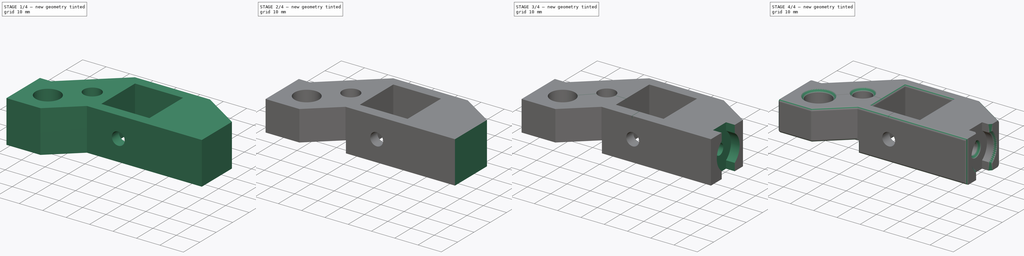
[diagram: build sequence overview — one tinted view per stage of 4, left to right]
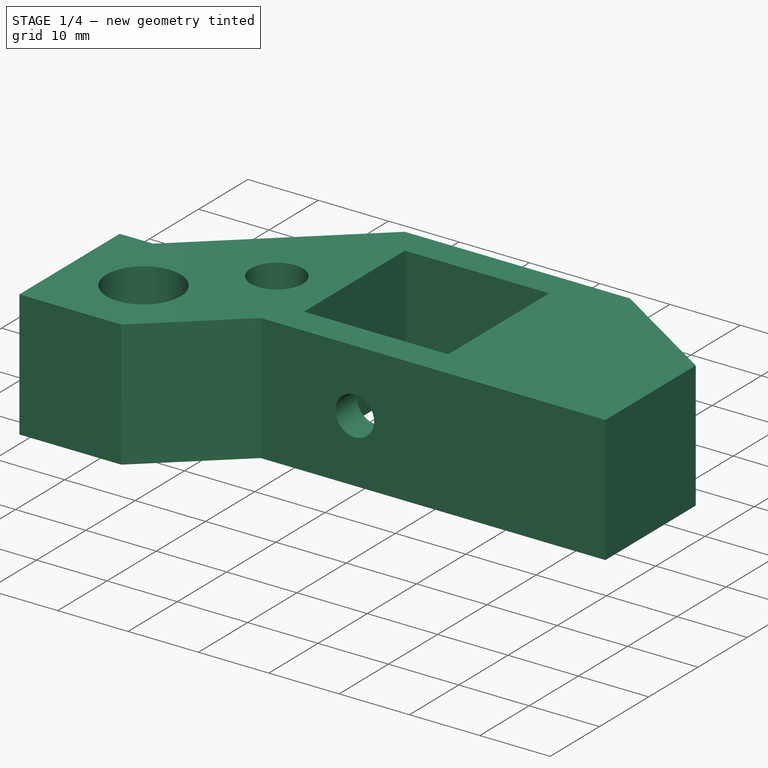
[diagram: stage 1 of 4 — iso view after this stage's code; geometry added in this stage tinted green]
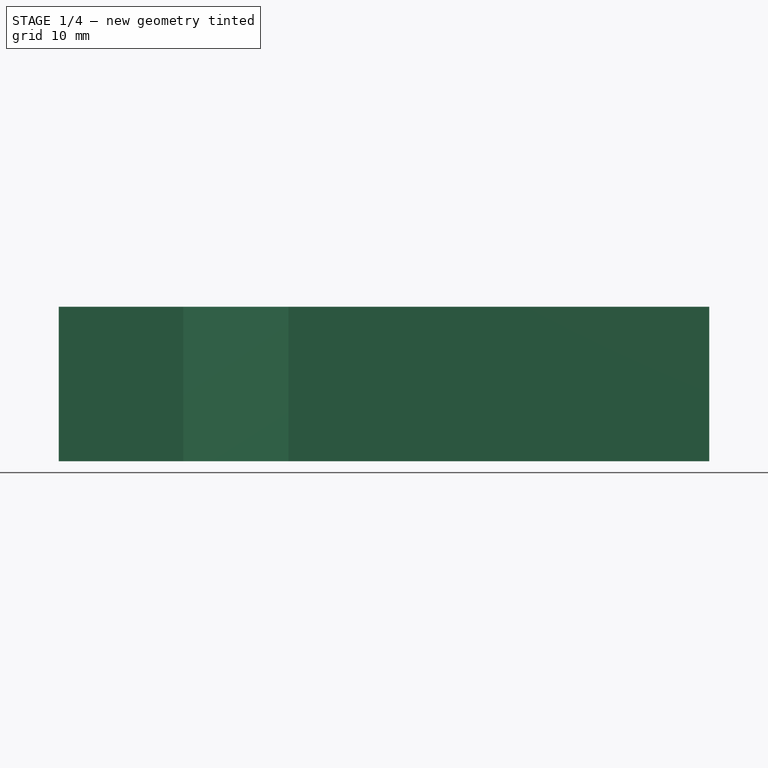
[diagram: stage 1 of 4 — front view after this stage's code; geometry added in this stage tinted green]
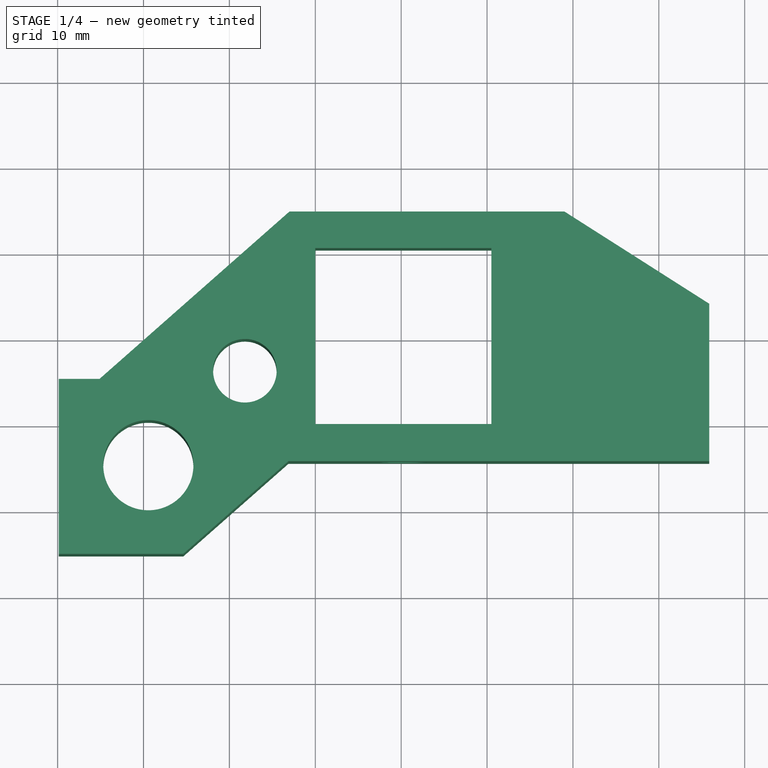
[diagram: stage 1 of 4 — top view after this stage's code; geometry added in this stage tinted green]
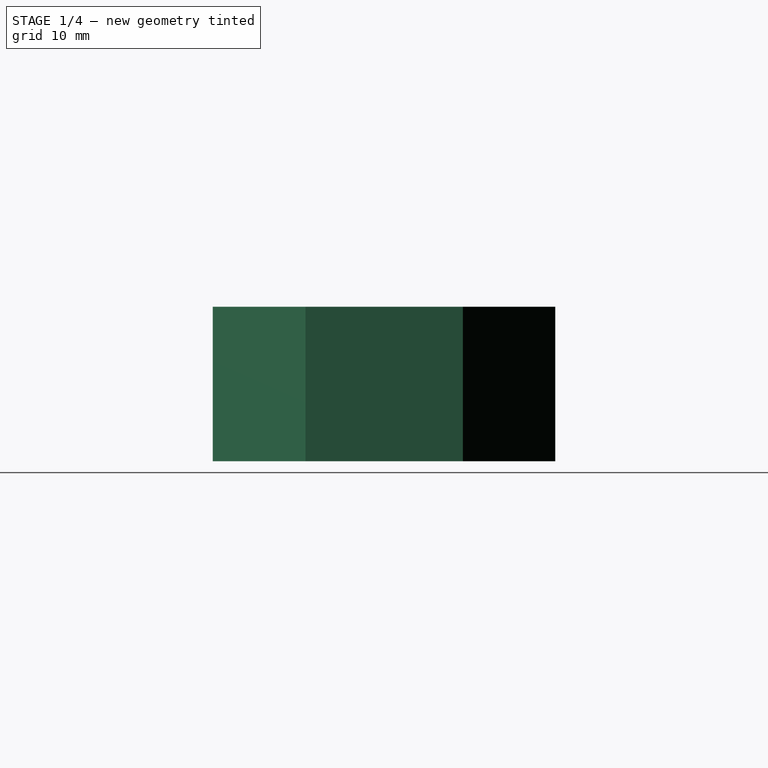
[diagram: stage 1 of 4 — right view after this stage's code; geometry added in this stage tinted green]
FCSTD DOCUMENT  (FreeCAD 0.17R13662 (Git))
Label: y_corner_right
License: CreativeCommons Attribution-ShareAlike
LicenseURL: http://creativecommons.org/licenses/by-sa/4.0/
objects: Sketcher::SketchObject×7, PartDesign::Pocket×6, PartDesign::Pad×1, PartDesign::Chamfer×1, PartDesign::Fillet×1, PartDesign::Body×1
note: 24 computed .brp shape members not serialized (recipe doc carries the construction recipe); baked Part::Feature solids carry a one-line shape summary decoded from their .brp

FEATURE [Sketcher::SketchObject] Sketch
  MapMode = 5
  Support = -> [XY_Plane]
  sketch-geometry (15):
    g0: LineSegment StartX=-15.375 StartY=-15.125 StartZ=0 EndX=-3.125 EndY=-4.32839 EndZ=0
    g1: LineSegment StartX=-3.125 StartY=-4.32839 StartZ=0 EndX=45.875 EndY=-4.32839 EndZ=0
    g2: LineSegment StartX=45.875 StartY=-4.32839 StartZ=0 EndX=45.875 EndY=14 EndZ=0
    g3: LineSegment StartX=45.875 StartY=14 StartZ=0 EndX=29 EndY=24.75 EndZ=0
    g4: LineSegment StartX=29 StartY=24.75 StartZ=0 EndX=-3 EndY=24.75 EndZ=0
    g5: LineSegment StartX=-3 StartY=24.75 StartZ=0 EndX=-25.125 EndY=5.25 EndZ=0
    g6: LineSegment StartX=-25.125 StartY=5.25 StartZ=0 EndX=-29.875 EndY=5.25 EndZ=0
    g7: LineSegment StartX=-29.875 StartY=5.25 StartZ=0 EndX=-29.875 EndY=-15.125 EndZ=0
    g8: LineSegment StartX=-29.875 StartY=-15.125 StartZ=0 EndX=-15.375 EndY=-15.125 EndZ=0
    g9: Circle CenterX=-8.2 CenterY=6.2 CenterZ=0 NormalX=0 NormalY=0 NormalZ=1 AngleXU=0 Radius=3.7
    g10: Circle CenterX=-19.44 CenterY=-4.8 CenterZ=0 NormalX=0 NormalY=0 NormalZ=1 AngleXU=0 Radius=5.25
    g11: LineSegment StartX=0 StartY=0 StartZ=0 EndX=20.5 EndY=0 EndZ=0
    g12: LineSegment StartX=20.5 StartY=0 StartZ=0 EndX=20.5 EndY=20.5 EndZ=0
    g13: LineSegment StartX=20.5 StartY=20.5 StartZ=0 EndX=0 EndY=20.5 EndZ=0
    g14: LineSegment StartX=0 StartY=20.5 StartZ=0 EndX=0 EndY=0 EndZ=0
  constraints (44):
    c: Coincident(g0,g1)
    c: Coincident(g1,g2)
    c: Coincident(g2,g3)
    c: Coincident(g3,g4)
    c: Coincident(g4,g5)
    c: Coincident(g5,g6)
    c: Coincident(g6,g7)
    c: Coincident(g7,g8)
    c: Coincident(g8,g0)
    c: Coincident(g11,g12)
    c: Coincident(g12,g13)
    c: Coincident(g13,g14)
    c: Coincident(g14,g11)
    c: Horizontal(g11)
    c: Horizontal(g13)
    c: Vertical(g12)
    c: Vertical(g14)
    c: Coincident(g11,g-1)
    c: Horizontal(g6)
    c: Horizontal(g8)
    c: Horizontal(g1)
    c: Horizontal(g4)
    c: Vertical(g2)
    c: Vertical(g7)
    c: Parallel(g0,g5)
    c: DistanceX(g4) = -3
    c: DistanceY(g4) = 24.75
    c: DistanceX(g5,g5) = 22.125
    c: DistanceY(g5,g5) = 19.5
    c: DistanceX(g6,g6) = 4.75
    c: DistanceY(g7,g7) = 20.375
    c: DistanceX(g8,g8) = 14.5
    c: DistanceX(g0,g0) = 12.25
    c: DistanceX(g1,g1) = 49
    c: DistanceX(g4,g4) = 32
    c: DistanceY(g3,g3) = 10.75
    c: DistanceX(g9) = -8.2
    c: DistanceY(g9) = 6.2
    c: Radius(g9) = 3.7
    c: DistanceX(g10) = -19.44
    c: DistanceY(g10) = -4.8
    c: Radius(g10) = 5.25
    c: Equal(g11,g14)
    c: DistanceY(g14,g14) = 20.5
FEATURE [PartDesign::Pad] Pad
  Length = 18
  Length2 = 100
  Profile = -> Sketch
  Reversed = true
  Type = 0
FEATURE [Sketcher::SketchObject] Sketch001
  ExternalGeometry = -> [Pad]
  MapMode = 5
  Placement = pos=(0,-4.32839,0) rot=(1,0,0;1.5708rad)
  Support = -> [Pad]
  sketch-geometry (1):
    g0: Circle CenterX=10.25 CenterY=-9 CenterZ=0 NormalX=0 NormalY=0 NormalZ=1 AngleXU=0 Radius=2.75
  constraints (3):
    c: DistanceX(g0) = 10.25
    c: DistanceY(g0) = -9
    c: Radius(g0) = 2.75
FEATURE [PartDesign::Pocket] Pocket
  BaseFeature = -> Pad
  Length = 6
  Length2 = 100
  Profile = -> Sketch001
  Type = 0
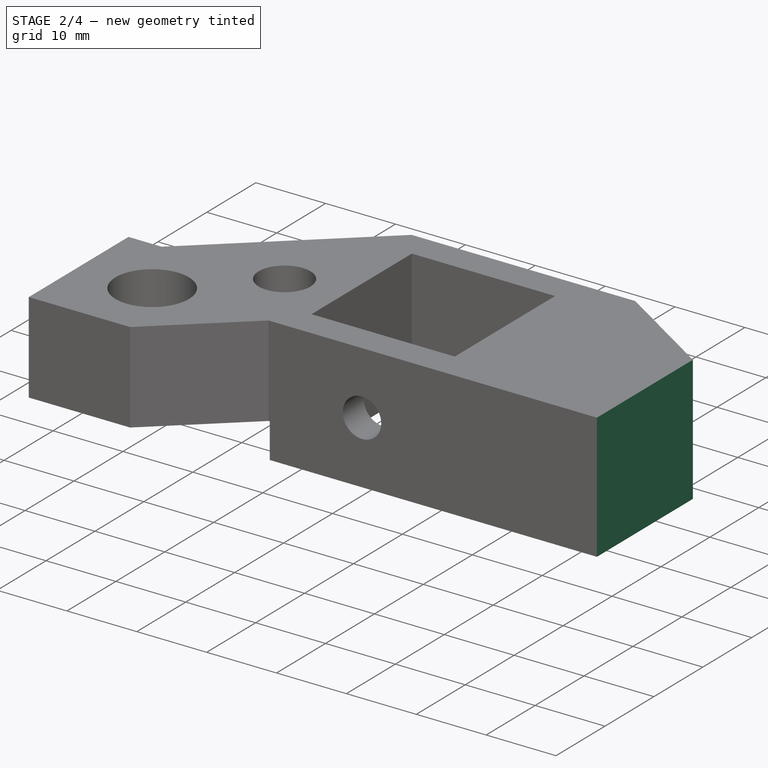
[diagram: stage 2 of 4 — iso view after this stage's code; geometry added in this stage tinted green]
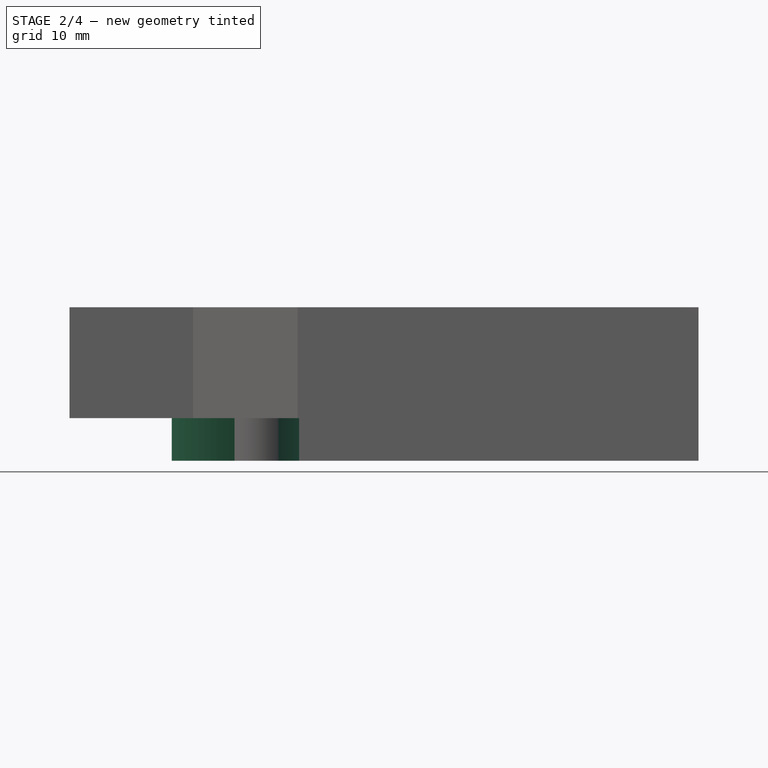
[diagram: stage 2 of 4 — front view after this stage's code; geometry added in this stage tinted green]
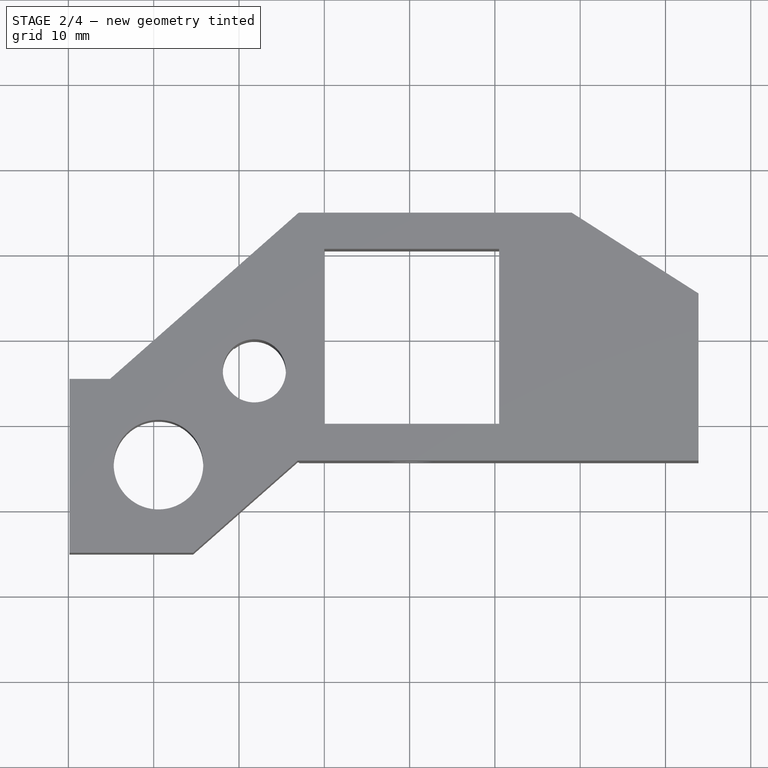
[diagram: stage 2 of 4 — top view after this stage's code; geometry added in this stage tinted green]
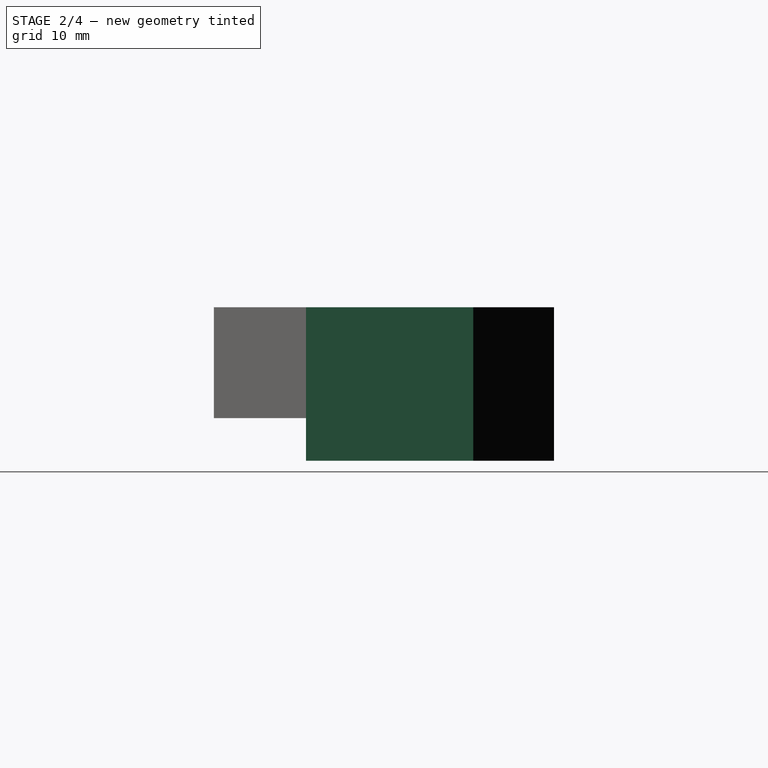
[diagram: stage 2 of 4 — right view after this stage's code; geometry added in this stage tinted green]
FEATURE [Sketcher::SketchObject] Sketch002
  ExternalGeometry = -> [Pad]
  MapMode = 5
  Placement = pos=(0,0,-18) rot=(1,0,0;3.14159rad)
  Support = -> [Pad]
  sketch-geometry (1):
    g0: Circle CenterX=-19.44 CenterY=4.8 CenterZ=0 NormalX=0 NormalY=0 NormalZ=1 AngleXU=0 Radius=16.5
  constraints (2):
    c: Coincident(g0,g-3)
    c: Radius(g0) = 16.5
FEATURE [PartDesign::Pocket] Pocket001
  BaseFeature = -> Pocket
  Length = 5
  Length2 = 100
  Profile = -> Sketch002
  Type = 0
FEATURE [Sketcher::SketchObject] Sketch003
  ExternalGeometry = -> [Pocket001]
  MapMode = 5
  Placement = pos=(45.875,0,0) rot=(0.57735,0.57735,0.57735;2.0944rad)
  Support = -> [Pocket001]
  sketch-geometry (4):
    g0: LineSegment StartX=-4.32839 StartY=0 StartZ=0 EndX=16.6716 EndY=0 EndZ=0
    g1: LineSegment StartX=16.6716 StartY=0 StartZ=0 EndX=16.6716 EndY=-18 EndZ=0
    g2: LineSegment StartX=16.6716 StartY=-18 StartZ=0 EndX=-4.32839 EndY=-18 EndZ=0
    g3: LineSegment StartX=-4.32839 StartY=-18 StartZ=0 EndX=-4.32839 EndY=0 EndZ=0
  constraints (11):
    c: Coincident(g0,g1)
    c: Coincident(g1,g2)
    c: Coincident(g2,g3)
    c: Coincident(g3,g0)
    c: Horizontal(g0)
    c: Horizontal(g2)
    c: Vertical(g1)
    c: Vertical(g3)
    c: Coincident(g2,g-3)
    c: Coincident(g0,g-3)
    c: DistanceX(g0,g0) = 21
FEATURE [PartDesign::Pocket] Pocket002
  BaseFeature = -> Pocket001
  Length = 2
  Length2 = 100
  Profile = -> Sketch003
  Type = 0
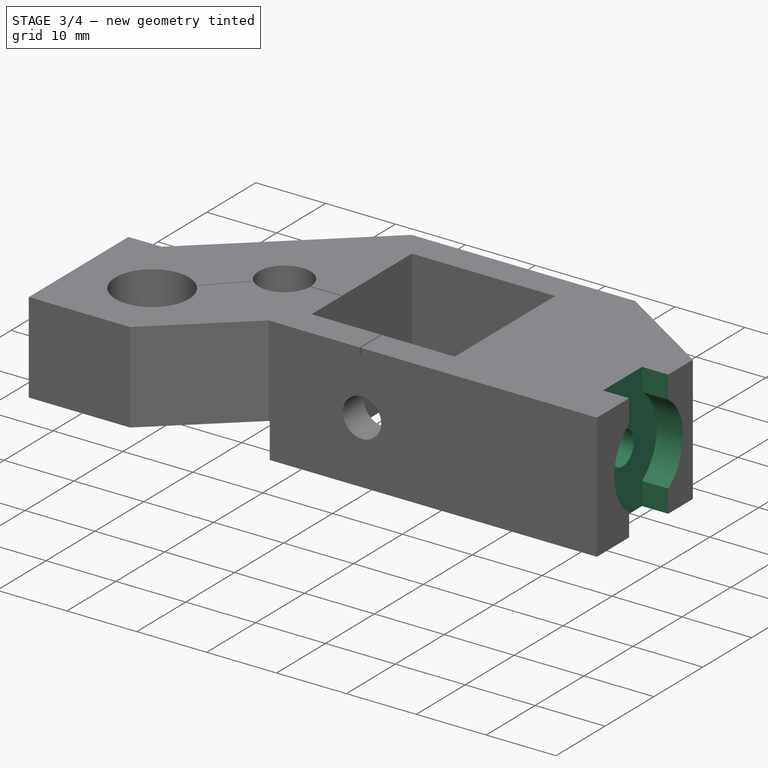
[diagram: stage 3 of 4 — iso view after this stage's code; geometry added in this stage tinted green]
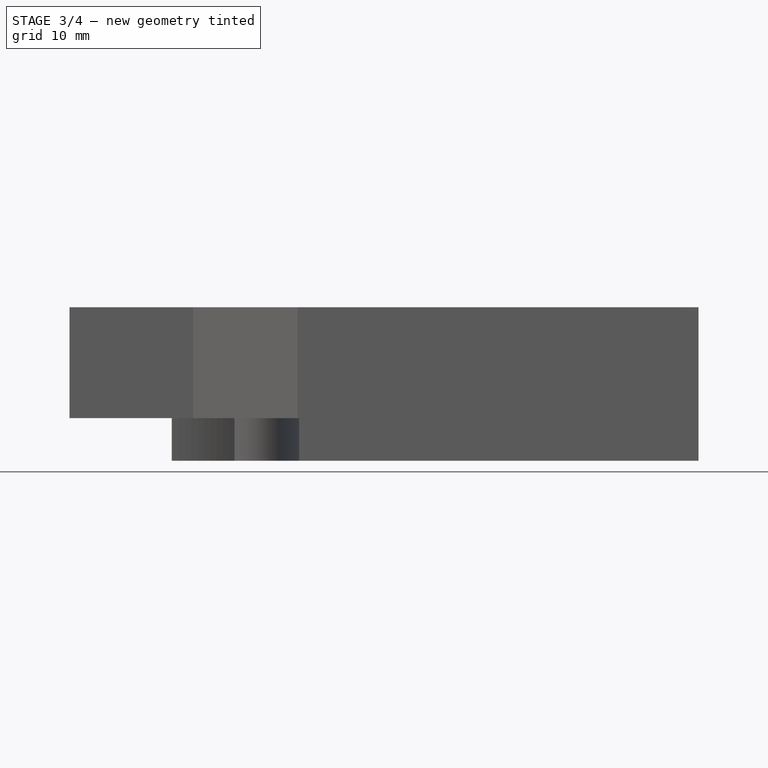
[diagram: stage 3 of 4 — front view after this stage's code; geometry added in this stage tinted green]
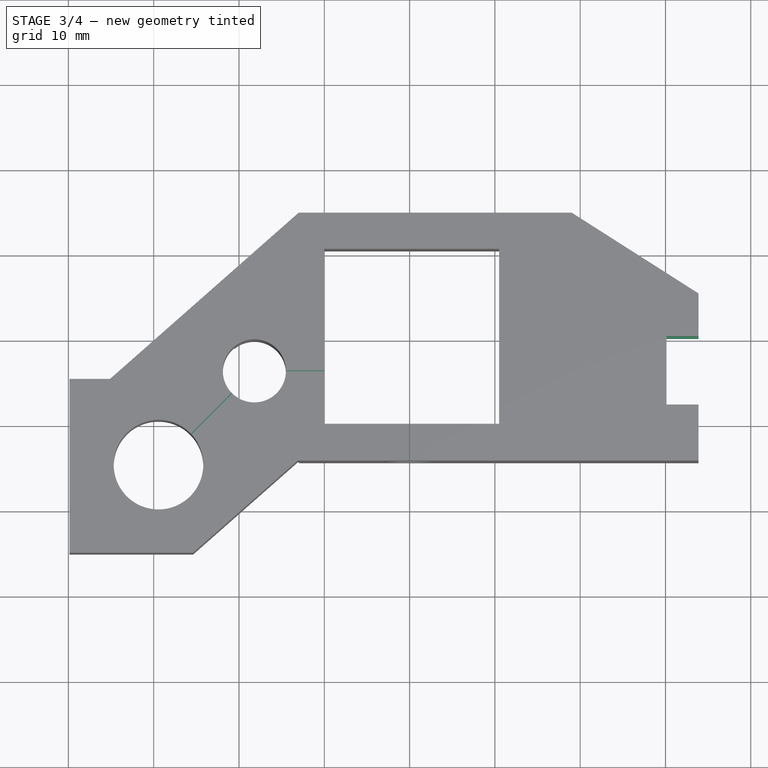
[diagram: stage 3 of 4 — top view after this stage's code; geometry added in this stage tinted green]
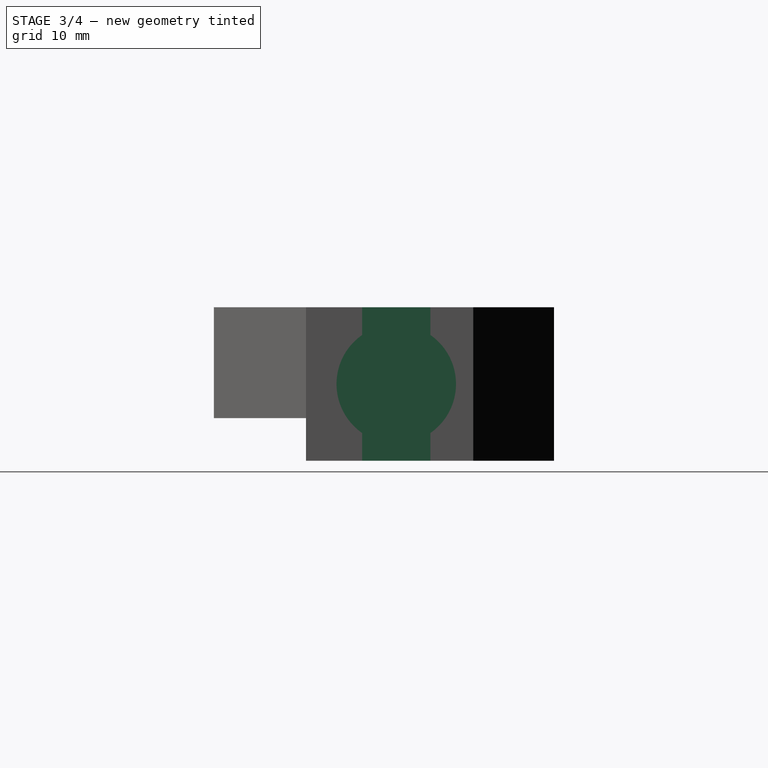
[diagram: stage 3 of 4 — right view after this stage's code; geometry added in this stage tinted green]
FEATURE [Sketcher::SketchObject] Sketch004
  MapMode = 5
  Placement = pos=(43.875,0,0) rot=(0.57735,0.57735,0.57735;2.0944rad)
  Support = -> [Pocket002]
  sketch-geometry (8):
    g0: ArcOfCircle CenterX=6.25 CenterY=-9 CenterZ=0 NormalX=0 NormalY=0 NormalZ=1 AngleXU=0 Radius=7.00446 StartAngle=5.32019 EndAngle=7.24618
    g1: LineSegment StartX=2.25 StartY=0 StartZ=0 EndX=10.25 EndY=0 EndZ=0
    g2: LineSegment StartX=10.25 StartY=0 StartZ=0 EndX=10.25 EndY=-3.25 EndZ=0
    g3: LineSegment StartX=10.25 StartY=-18 StartZ=0 EndX=2.25 EndY=-18 EndZ=0
    g4: LineSegment StartX=2.25 StartY=-18 StartZ=0 EndX=2.25 EndY=-14.75 EndZ=0
    g5: LineSegment StartX=2.25 StartY=-3.25 StartZ=0 EndX=2.25 EndY=0 EndZ=0
    g6: LineSegment StartX=10.25 StartY=-14.75 StartZ=0 EndX=10.25 EndY=-18 EndZ=0
    g7: ArcOfCircle CenterX=6.25 CenterY=-9 CenterZ=0 NormalX=0 NormalY=0 NormalZ=1 AngleXU=0 Radius=7.00446 StartAngle=2.1786 EndAngle=4.10459
  constraints (24):
    c: Coincident(g1,g2)
    c: Coincident(g6,g3)
    c: Coincident(g3,g4)
    c: Coincident(g5,g1)
    c: Horizontal(g1)
    c: Horizontal(g3)
    c: Vertical(g2)
    c: Vertical(g4)
    c: PointOnObject(g1,g-1)
    c: DistanceY(g4,g5) = 18
    c: DistanceX(g1) = 2.25
    c: DistanceX(g1,g1) = 8
    c: Tangent(g4,g5)
    c: Tangent(g2,g6)
    c: Coincident(g0,g6)
    c: Coincident(g7,g4)
    c: Equal(g0,g7)
    c: Coincident(g0,g2)
    c: Coincident(g7,g5)
    c: Coincident(g0,g7)
    c: Equal(g5,g2)
    c: Equal(g2,g6)
    c: Equal(g6,g4)
    c: DistanceY(g4,g4) = 3.25
FEATURE [PartDesign::Pocket] Pocket003
  BaseFeature = -> Pocket002
  Length = 3.75
  Length2 = 100
  Profile = -> Sketch004
  Type = 0
FEATURE [Sketcher::SketchObject] Sketch005
  ExternalGeometry = -> [Pocket003]
  MapMode = 5
  Placement = pos=(40.125,0,0) rot=(0.57735,0.57735,0.57735;2.0944rad)
  Support = -> [Pocket003]
  sketch-geometry (1):
    g0: Circle CenterX=6.25 CenterY=-9 CenterZ=0 NormalX=0 NormalY=0 NormalZ=1 AngleXU=0 Radius=2.35
  constraints (2):
    c: Coincident(g0,g-3)
    c: Radius(g0) = 2.35
FEATURE [PartDesign::Pocket] Pocket004
  BaseFeature = -> Pocket003
  Length = 7
  Length2 = 100
  Profile = -> Sketch005
  Type = 0
FEATURE [Sketcher::SketchObject] Sketch006
  ExternalGeometry = -> [Pocket004]
  MapMode = 5
  sketch-geometry (12):
    g0: LineSegment StartX=0 StartY=6.25 StartZ=0 EndX=-4.50034 EndY=6.25 EndZ=0
    g1: LineSegment StartX=-4.50034 StartY=6.25 StartZ=0 EndX=-4.50034 EndY=6.15 EndZ=0
    g2: LineSegment StartX=-4.50034 StartY=6.15 StartZ=0 EndX=0 EndY=6.15 EndZ=0
    g3: LineSegment StartX=0 StartY=6.15 StartZ=0 EndX=0 EndY=6.25 EndZ=0
    g4: LineSegment StartX=-10.8514 StartY=3.61928 StartZ=0 EndX=-15.644 EndY=-1.17332 EndZ=0
    g5: LineSegment StartX=-15.644 StartY=-1.17332 StartZ=0 EndX=-15.5756 EndY=-1.24628 EndZ=0
    g6: LineSegment StartX=-15.5756 StartY=-1.24628 StartZ=0 EndX=-10.7807 EndY=3.54861 EndZ=0
    g7: LineSegment StartX=-10.7807 StartY=3.54861 StartZ=0 EndX=-10.8514 EndY=3.61928 EndZ=0
    g8: LineSegment StartX=9.95 StartY=0 StartZ=0 EndX=10.05 EndY=0 EndZ=0
    g9: LineSegment StartX=10.05 StartY=0 StartZ=0 EndX=10.05 EndY=-4.32839 EndZ=0
    g10: LineSegment StartX=10.05 StartY=-4.32839 StartZ=0 EndX=9.95 EndY=-4.32839 EndZ=0
    g11: LineSegment StartX=9.95 StartY=-4.32839 StartZ=0 EndX=9.95 EndY=0 EndZ=0
  constraints (36):
    c: Coincident(g0,g1)
    c: Coincident(g1,g2)
    c: Coincident(g2,g3)
    c: Coincident(g3,g0)
    c: Horizontal(g0)
    c: Horizontal(g2)
    c: Vertical(g1)
    c: Vertical(g3)
    c: Coincident(g4,g5)
    c: Coincident(g5,g6)
    c: Coincident(g6,g7)
    c: Coincident(g7,g4)
    c: DistanceY(g1,g1) = 0.1
    c: Perpendicular(g6,g7)
    c: Perpendicular(g4,g7)
    c: Angle(g6) = 0.785398
    c: Distance(g5) = 0.1
    c: Coincident(g8,g9)
    c: Coincident(g9,g10)
    c: Coincident(g10,g11)
    c: Coincident(g11,g8)
    c: Horizontal(g8)
    c: Horizontal(g10)
    c: Vertical(g9)
    c: Vertical(g11)
    c: PointOnObject(g8,g-1)
    c: PointOnObject(g10,g-5)
    c: DistanceX(g-1,g8) = 9.95
    c: DistanceX(g8,g8) = 0.1
    c: PointOnObject(g1,g-4)
    c: PointOnObject(g2,g-2)
    c: PointOnObject(g0,g-4)
    c: PointOnObject(g6,g-4)
    c: PointOnObject(g4,g-4)
    c: PointOnObject(g5,g-3)
    c: PointOnObject(g4,g-3)
FEATURE [PartDesign::Pocket] Pocket005
  BaseFeature = -> Pocket004
  Length = 1
  Length2 = 100
  Profile = -> Sketch006
  Type = 0
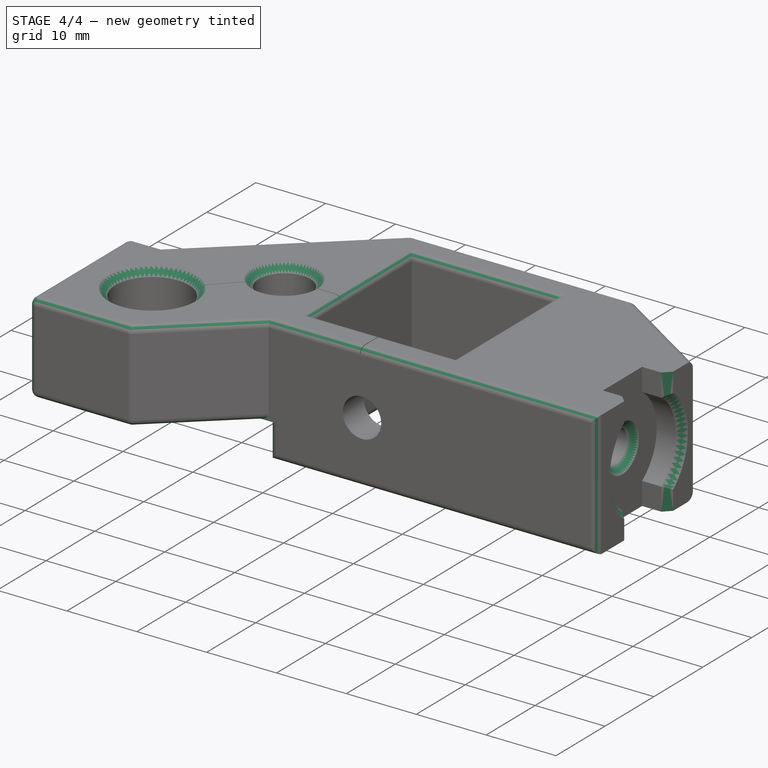
[diagram: stage 4 of 4 — iso view after this stage's code; geometry added in this stage tinted green]
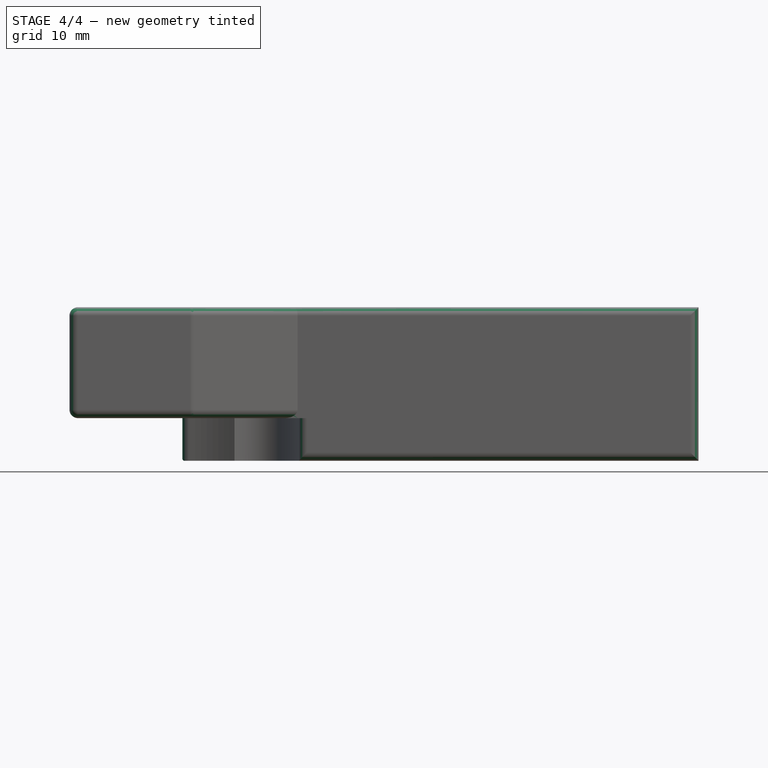
[diagram: stage 4 of 4 — front view after this stage's code; geometry added in this stage tinted green]
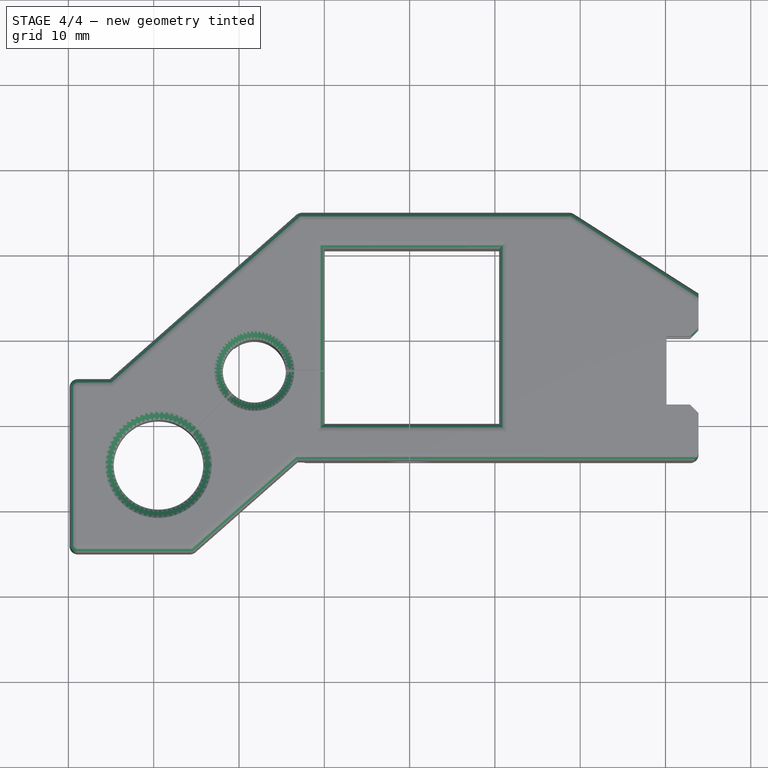
[diagram: stage 4 of 4 — top view after this stage's code; geometry added in this stage tinted green]
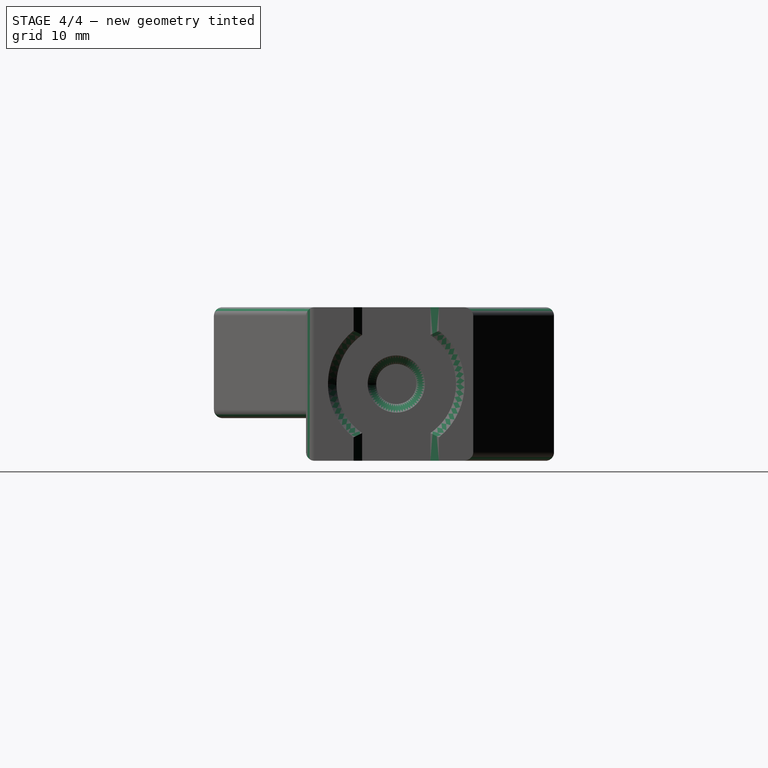
[diagram: stage 4 of 4 — right view after this stage's code; geometry added in this stage tinted green]
FEATURE [PartDesign::Chamfer] Chamfer
  Base = -> Pocket005 [Edge21,Edge26,Edge49,Edge23,Edge61,Edge74,Edge72,Edge62,Edge77,Edge63,Edge76]
  BaseFeature = -> Pocket005
  Size = 1
FEATURE [PartDesign::Fillet] Fillet
  Base = -> Chamfer [Edge41,Edge3,Edge40,Edge5,Edge45,Edge67,Edge74,Edge90,Edge96,Edge85,Edge92,Edge54,Edge60,Edge64,Edge70,Edge79,Edge69,Edge15,Edge13,Edge63,Edge59,Edge11,Edge9,Edge7,Edge44,Edge56,Edge17,Edge18,Edge21,Edge14,Edge20,Edge23,Edge24,Edge22,Edge75,Edge55]
  BaseFeature = -> Chamfer
  Radius = 1
FEATURE [PartDesign::Body] Body
  Group = -> [Sketch,Pad,Sketch001,Pocket,Sketch002,Pocket001,Sketch003,Pocket002,Sketch004,Pocket003,Sketch005,Pocket004,Sketch006,Pocket005,Chamfer,Fillet]
  Origin = -> Origin
  Tip = -> Fillet
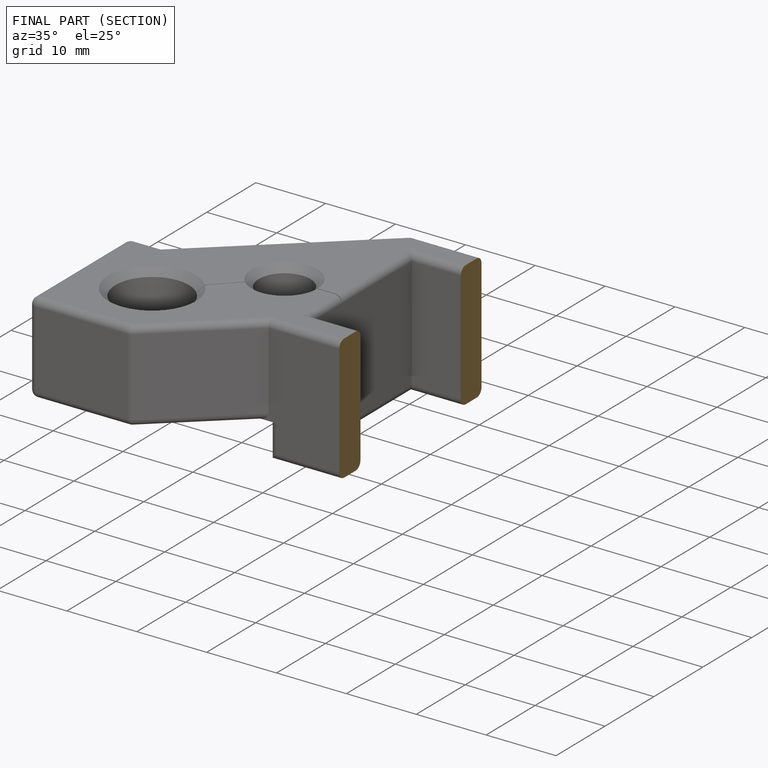
[diagram: finished part — half-section view (interior)]
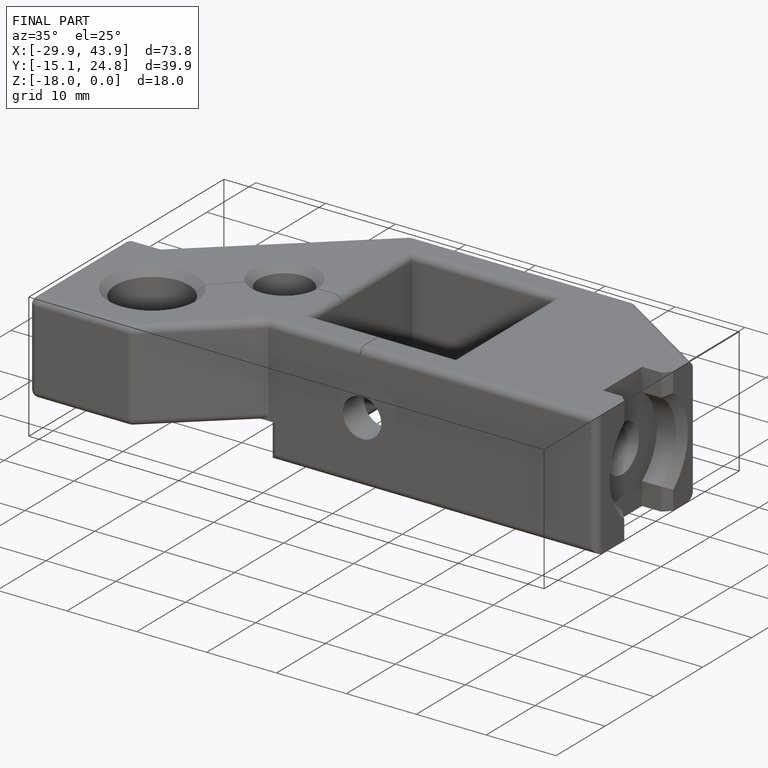
[diagram: finished part — iso view with bounding-box wireframe]
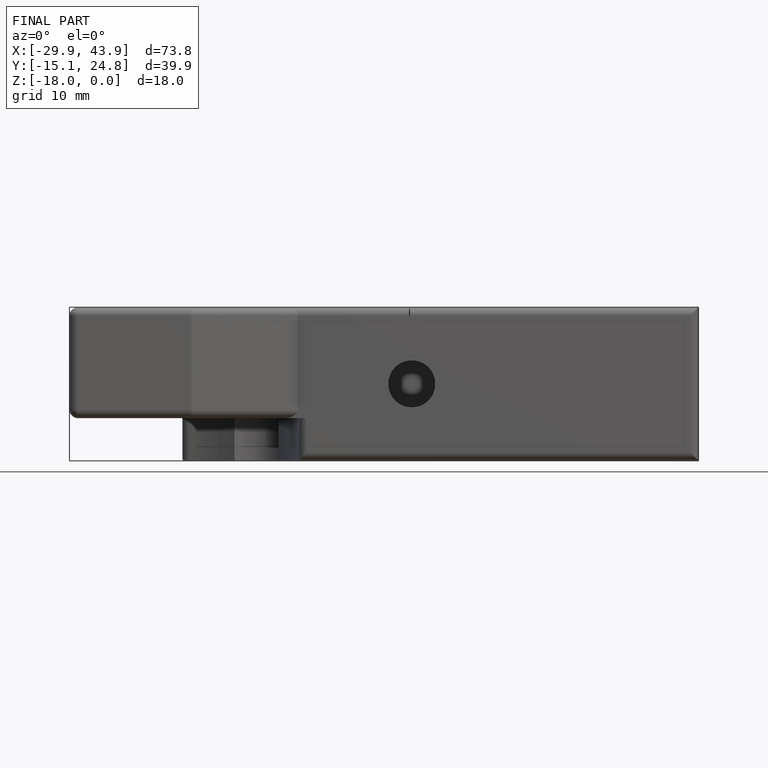
[diagram: finished part — front view with bounding-box wireframe]
